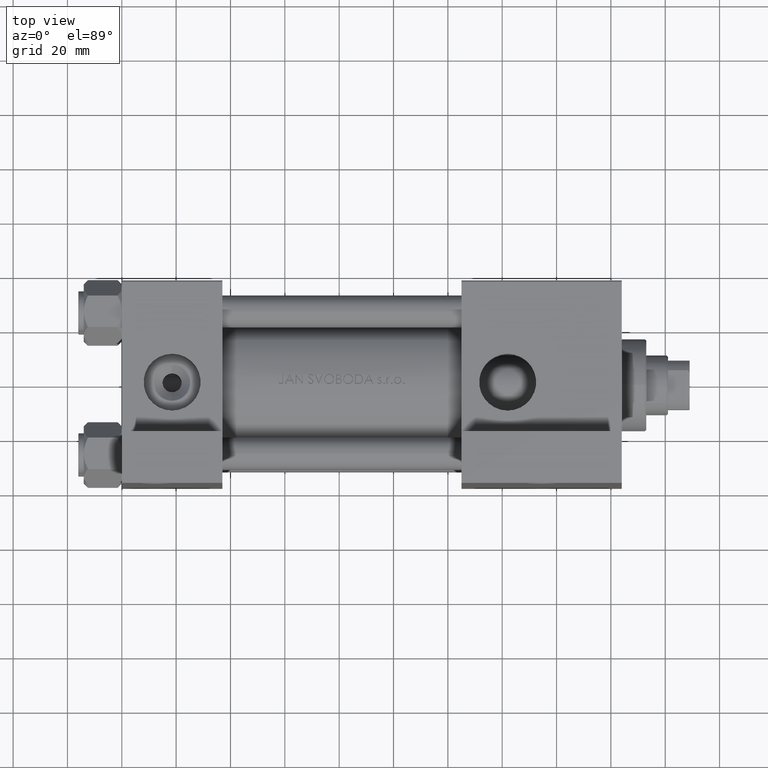
[diagram: clean part render]
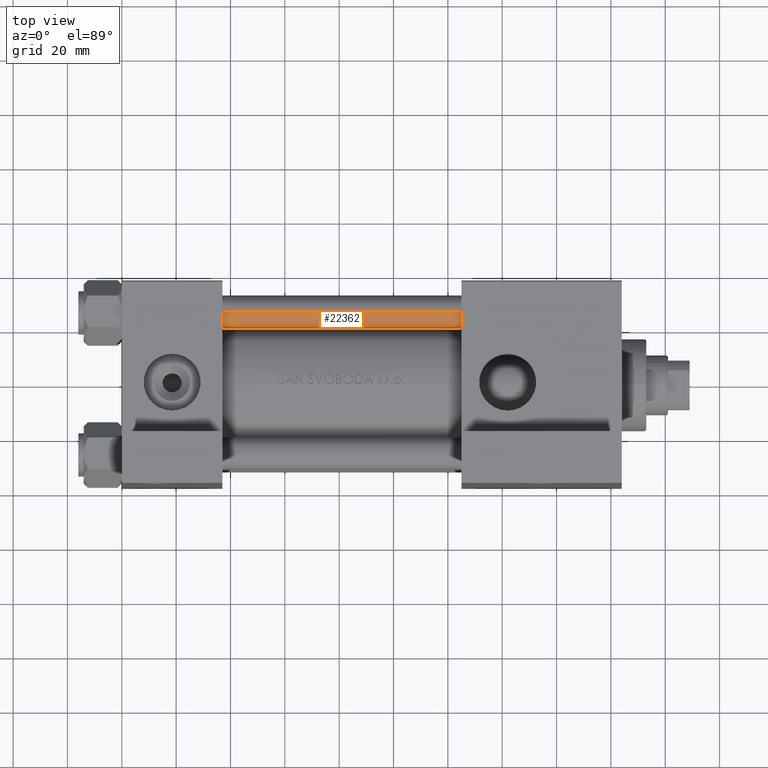
[diagram: same view with one face highlighted and labeled with its STEP entity id]
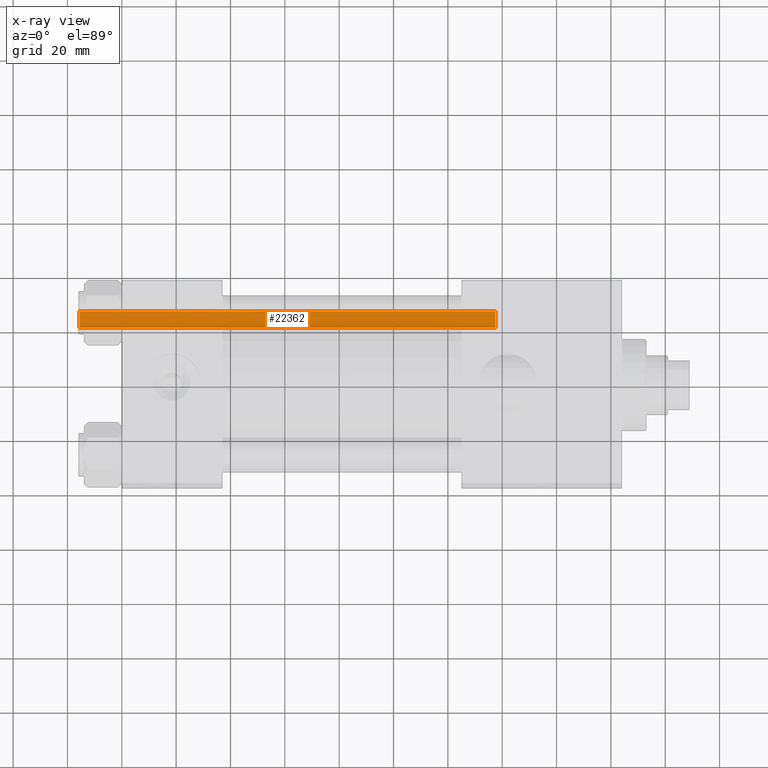
[diagram: x-ray of the same camera — body ghosted, the highlighted face saturated]
A machine part, top view. The second image highlights one B-rep face of the part: STEP entity #22362.
The next image is the same camera in x-ray: the body ghosted, the highlighted face saturated — about 0% of this face is hidden behind the body in this view.
In plain terms, the highlighted cylindrical surface (edge-blend (fillet) strip) has radius 6 mm, axis along (-1, -0, -0).
Its self-contained STEP definition (entity closure, byte-faithful):
#1445 = VECTOR ( 'NONE', #3548, 1000.000000000000000 ) ;
#2152 = DIRECTION ( 'NONE',  ( 1.000000000000000000, 0.000000000000000000, 0.000000000000000000 ) ) ;
#2169 = CARTESIAN_POINT ( 'NONE',  ( 6.000000000000000888, 7.347880794884120722E-16, 0.5000000000000281997 ) ) ;
#3251 = ORIENTED_EDGE ( 'NONE', *, *, #41538, .T. ) ;
#3256 = DIRECTION ( 'NONE',  ( -0.000000000000000000, -0.000000000000000000, -1.000000000000000000 ) ) ;
#3517 = CARTESIAN_POINT ( 'NONE',  ( 0.000000000000000000, 0.000000000000000000, 153.5000000000000000 ) ) ;
#3548 = DIRECTION ( 'NONE',  ( -0.000000000000000000, -0.000000000000000000, -1.000000000000000000 ) ) ;
#6053 = AXIS2_PLACEMENT_3D ( 'NONE', #16582, #23588, #2152 ) ;
#6284 = EDGE_LOOP ( 'NONE', ( #36949, #10521, #3251, #47124 ) ) ;
#7461 = VECTOR ( 'NONE', #26711, 1000.000000000000000 ) ;
#9107 = VERTEX_POINT ( 'NONE', #2169 ) ;
#10521 = ORIENTED_EDGE ( 'NONE', *, *, #17993, .T. ) ;
#12028 = CARTESIAN_POINT ( 'NONE',  ( 6.000000000000000888, 7.347880794884120722E-16, 154.0000000000000000 ) ) ;
#13025 = EDGE_CURVE ( 'NONE', #46074, #9107, #44978, .T. ) ;
#14306 = VERTEX_POINT ( 'NONE', #33876 ) ;
#15429 = AXIS2_PLACEMENT_3D ( 'NONE', #36193, #3256, #25390 ) ;
#16582 = CARTESIAN_POINT ( 'NONE',  ( 0.000000000000000000, 0.000000000000000000, 0.5000000000000281997 ) ) ;
#17300 = CARTESIAN_POINT ( 'NONE',  ( -6.000000000000000888, 0.000000000000000000, 153.5000000000000000 ) ) ;
#17332 = EDGE_CURVE ( 'NONE', #14306, #9107, #45234, .T. ) ;
#17993 = EDGE_CURVE ( 'NONE', #46074, #39883, #32180, .T. ) ;
#18188 = DIRECTION ( 'NONE',  ( 0.000000000000000000, 0.000000000000000000, -1.000000000000000000 ) ) ;
#18221 = CARTESIAN_POINT ( 'NONE',  ( -6.000000000000000888, 0.000000000000000000, 154.0000000000000000 ) ) ;
#22362 = ADVANCED_FACE ( 'NONE', ( #32358 ), #47020, .T. ) ;
#23588 = DIRECTION ( 'NONE',  ( -0.000000000000000000, -0.000000000000000000, 1.000000000000000000 ) ) ;
#25390 = DIRECTION ( 'NONE',  ( -1.000000000000000000, 0.000000000000000000, 0.000000000000000000 ) ) ;
#26711 = DIRECTION ( 'NONE',  ( -0.000000000000000000, -0.000000000000000000, -1.000000000000000000 ) ) ;
#32138 = CARTESIAN_POINT ( 'NONE',  ( 6.000000000000000888, 7.347880794884120722E-16, 153.5000000000000000 ) ) ;
#32180 = CIRCLE ( 'NONE', #36017, 6.000000000000000888 ) ;
#32358 = FACE_OUTER_BOUND ( 'NONE', #6284, .T. ) ;
#32855 = DIRECTION ( 'NONE',  ( 1.000000000000000000, 0.000000000000000000, 0.000000000000000000 ) ) ;
#33876 = CARTESIAN_POINT ( 'NONE',  ( -6.000000000000000888, 0.000000000000000000, 0.5000000000000281997 ) ) ;
#36017 = AXIS2_PLACEMENT_3D ( 'NONE', #3517, #18188, #32855 ) ;
#36193 = CARTESIAN_POINT ( 'NONE',  ( 0.000000000000000000, 0.000000000000000000, 154.0000000000000000 ) ) ;
#36949 = ORIENTED_EDGE ( 'NONE', *, *, #13025, .F. ) ;
#39883 = VERTEX_POINT ( 'NONE', #17300 ) ;
#41286 = LINE ( 'NONE', #18221, #1445 ) ;
#41538 = EDGE_CURVE ( 'NONE', #39883, #14306, #41286, .T. ) ;
#44978 = LINE ( 'NONE', #12028, #7461 ) ;
#45234 = CIRCLE ( 'NONE', #6053, 6.000000000000000888 ) ;
#46074 = VERTEX_POINT ( 'NONE', #32138 ) ;
#47020 = CYLINDRICAL_SURFACE ( 'NONE', #15429, 6.000000000000000888 ) ;
#47124 = ORIENTED_EDGE ( 'NONE', *, *, #17332, .T. ) ;